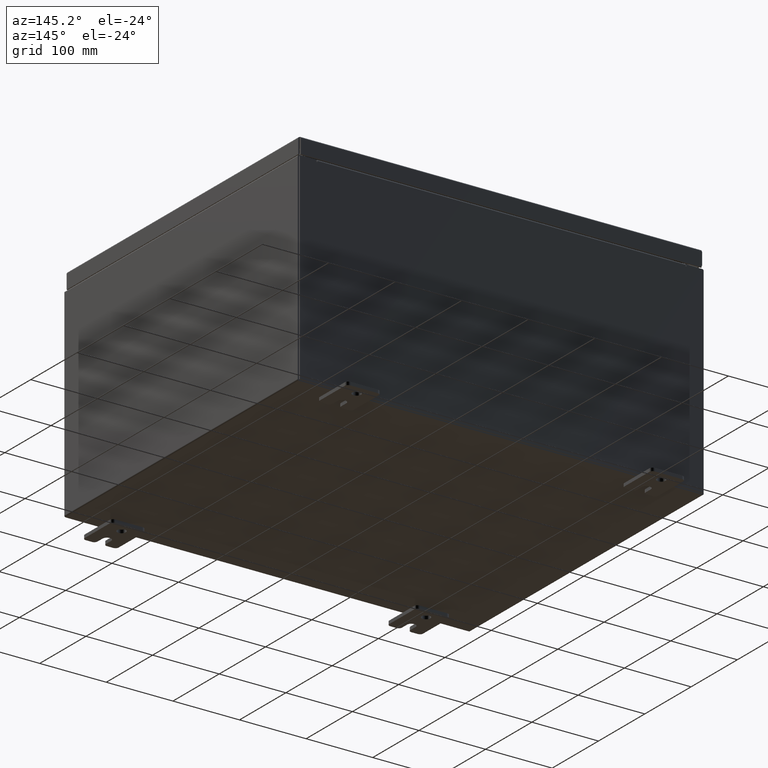
[diagram: clean part render]
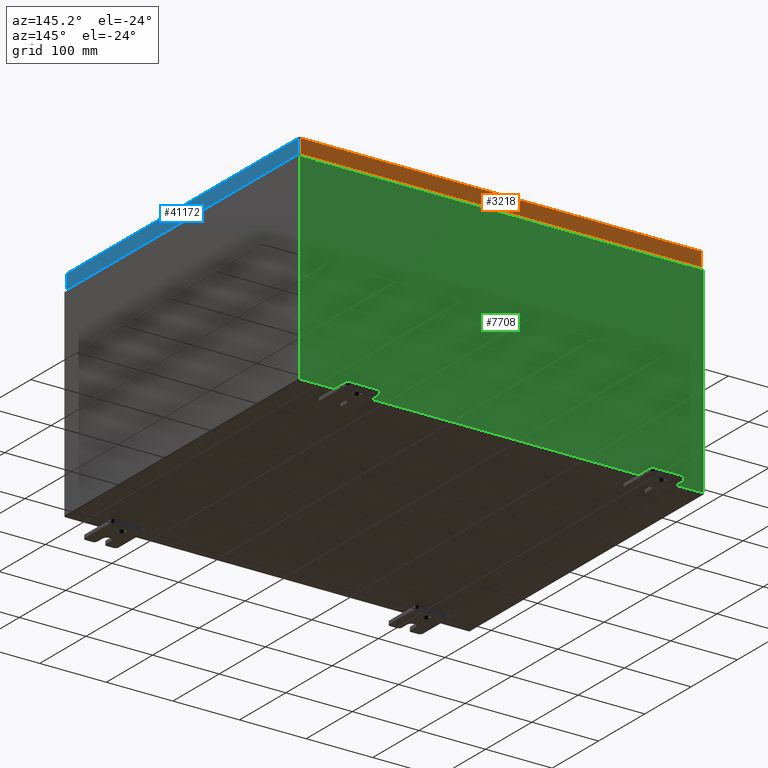
[diagram: same view with three faces highlighted in distinct colors, each labeled with its STEP entity id]
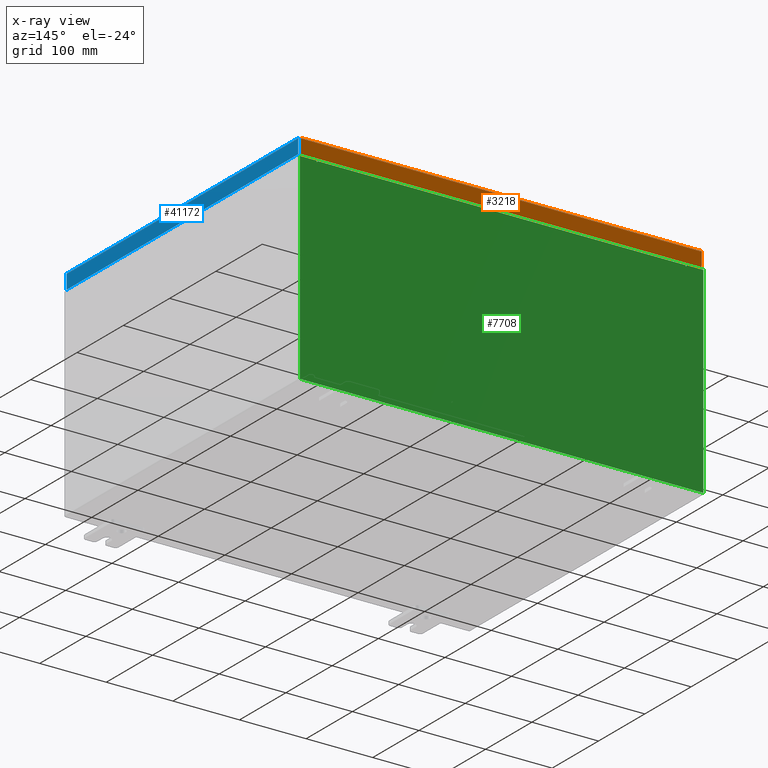
[diagram: x-ray of the same camera — body ghosted, the three highlighted faces saturated]
A machine part, auxiliary view with three faces highlighted in distinct colors.
The next image is the same camera in x-ray (body ghosted, the three faces saturated) — at least one of them is partly hidden behind the body in this view.
Their STEP definitions:

[orange] entity #3218 — the highlighted planar face has unit normal (0, -1, -0).
#571 = CARTESIAN_POINT ( 'NONE',  ( -11.93749999999999800, 9.937500000000000000, -0.08770000000000008300 ) ) ;
#898 = CARTESIAN_POINT ( 'NONE',  ( -11.84865786437626600, 9.937500000000001800, -0.9377000000000028600 ) ) ;
#2691 = EDGE_CURVE ( 'NONE', #61021, #38476, #24861, .T. ) ;
#3218 = ADVANCED_FACE ( 'NONE', ( #63209 ), #8394, .F. ) ;
#3462 = CARTESIAN_POINT ( 'NONE',  ( -3.167515136506044800E-030, 9.937500000000000000, 2.542673665674254000E-014 ) ) ;
#3505 = EDGE_CURVE ( 'NONE', #33344, #38476, #19436, .T. ) ;
#6437 = VECTOR ( 'NONE', #34890, 39.37007874015748100 ) ;
#7994 = VERTEX_POINT ( 'NONE', #59926 ) ;
#8394 = PLANE ( 'NONE',  #42826 ) ;
#9952 = ORIENTED_EDGE ( 'NONE', *, *, #12106, .F. ) ;
#10673 = DIRECTION ( 'NONE',  ( -0.0000000000000000000, 2.532419924601857400E-015, -1.000000000000000000 ) ) ;
#12106 = EDGE_CURVE ( 'NONE', #7994, #61021, #46683, .T. ) ;
#13302 = CARTESIAN_POINT ( 'NONE',  ( 11.84865786437626900, 9.937500000000001800, -0.9376999999999997600 ) ) ;
#13860 = VECTOR ( 'NONE', #59259, 39.37007874015748100 ) ;
#17070 = EDGE_CURVE ( 'NONE', #33344, #7994, #35336, .T. ) ;
#18236 = DIRECTION ( 'NONE',  ( 0.0000000000000000000, 2.532419924601857400E-015, -1.000000000000000000 ) ) ;
#19436 = LINE ( 'NONE', #44581, #6437 ) ;
#19742 = CARTESIAN_POINT ( 'NONE',  ( 11.84865786437626900, 9.937500000000000000, -0.08770000000000008300 ) ) ;
#20268 = ORIENTED_EDGE ( 'NONE', *, *, #17070, .F. ) ;
#24861 = LINE ( 'NONE', #43824, #37890 ) ;
#31638 = ORIENTED_EDGE ( 'NONE', *, *, #2691, .F. ) ;
#32555 = EDGE_LOOP ( 'NONE', ( #20268, #42505, #31638, #9952 ) ) ;
#33344 = VERTEX_POINT ( 'NONE', #19742 ) ;
#34890 = DIRECTION ( 'NONE',  ( 0.0000000000000000000, 2.532419924601857400E-015, -1.000000000000000000 ) ) ;
#35336 = LINE ( 'NONE', #571, #13860 ) ;
#37890 = VECTOR ( 'NONE', #58587, 39.37007874015748100 ) ;
#38476 = VERTEX_POINT ( 'NONE', #13302 ) ;
#42505 = ORIENTED_EDGE ( 'NONE', *, *, #3505, .T. ) ;
#42826 = AXIS2_PLACEMENT_3D ( 'NONE', #3462, #47602, #18236 ) ;
#43824 = CARTESIAN_POINT ( 'NONE',  ( -11.93749999999999800, 9.937500000000001800, -0.9377000000000028600 ) ) ;
#44029 = VECTOR ( 'NONE', #10673, 39.37007874015748100 ) ;
#44581 = CARTESIAN_POINT ( 'NONE',  ( 11.84865786437626900, 9.937500000000000000, 2.542673665674254000E-014 ) ) ;
#44983 = CARTESIAN_POINT ( 'NONE',  ( -11.84865786437626600, 9.937500000000000000, -0.07469999999999980800 ) ) ;
#46683 = LINE ( 'NONE', #44983, #44029 ) ;
#47602 = DIRECTION ( 'NONE',  ( 3.187436615351995300E-031, -1.000000000000000000, -2.532419924601857400E-015 ) ) ;
#58587 = DIRECTION ( 'NONE',  ( 1.000000000000000000, -4.379057701015054300E-047, 1.258652478756310100E-016 ) ) ;
#59259 = DIRECTION ( 'NONE',  ( -1.000000000000000000, -3.187436615351995700E-031, -7.980458346197337200E-046 ) ) ;
#59926 = CARTESIAN_POINT ( 'NONE',  ( -11.84865786437626600, 9.937500000000000000, -0.08770000000000008300 ) ) ;
#61021 = VERTEX_POINT ( 'NONE', #898 ) ;
#63209 = FACE_OUTER_BOUND ( 'NONE', #32555, .T. ) ;

[blue] entity #41172 — the highlighted planar face has unit normal (1, 0, 0).
#6292 = FACE_OUTER_BOUND ( 'NONE', #34145, .T. ) ;
#9268 = DIRECTION ( 'NONE',  ( 2.532419924601866100E-015, 0.0000000000000000000, -1.000000000000000000 ) ) ;
#10240 = EDGE_CURVE ( 'NONE', #28535, #20502, #46808, .T. ) ;
#10563 = DIRECTION ( 'NONE',  ( -2.532419924601866100E-015, -6.982962677686267500E-015, 1.000000000000000000 ) ) ;
#10772 = CARTESIAN_POINT ( 'NONE',  ( 11.93750000000000000, -9.848657864376269400, -0.07469999999999980800 ) ) ;
#12528 = DIRECTION ( 'NONE',  ( 0.0000000000000000000, -1.000000000000000000, 0.0000000000000000000 ) ) ;
#15539 = CARTESIAN_POINT ( 'NONE',  ( 11.93750000000000200, -9.937500000000000000, -0.9376999999999997600 ) ) ;
#15563 = EDGE_CURVE ( 'NONE', #20502, #60448, #53838, .T. ) ;
#17902 = VECTOR ( 'NONE', #23108, 39.37007874015748100 ) ;
#20502 = VERTEX_POINT ( 'NONE', #63185 ) ;
#23108 = DIRECTION ( 'NONE',  ( -2.532419924601866100E-015, -6.982962677686267500E-015, 1.000000000000000000 ) ) ;
#24575 = ORIENTED_EDGE ( 'NONE', *, *, #10240, .F. ) ;
#25606 = ORIENTED_EDGE ( 'NONE', *, *, #57177, .T. ) ;
#26236 = VECTOR ( 'NONE', #10563, 39.37007874015748100 ) ;
#28535 = VERTEX_POINT ( 'NONE', #53948 ) ;
#29339 = VERTEX_POINT ( 'NONE', #40980 ) ;
#33809 = EDGE_CURVE ( 'NONE', #28535, #29339, #56994, .T. ) ;
#34145 = EDGE_LOOP ( 'NONE', ( #60545, #24575, #37935, #25606 ) ) ;
#37935 = ORIENTED_EDGE ( 'NONE', *, *, #33809, .T. ) ;
#38604 = DIRECTION ( 'NONE',  ( 1.000000000000000000, 0.0000000000000000000, 2.532419924601866100E-015 ) ) ;
#40980 = CARTESIAN_POINT ( 'NONE',  ( 11.93750000000000000, 9.848657864376271200, -0.08770000000000008300 ) ) ;
#41172 = ADVANCED_FACE ( 'NONE', ( #6292 ), #63066, .T. ) ;
#46808 = LINE ( 'NONE', #15539, #58275 ) ;
#49523 = DIRECTION ( 'NONE',  ( 0.0000000000000000000, -1.000000000000000000, 0.0000000000000000000 ) ) ;
#50651 = AXIS2_PLACEMENT_3D ( 'NONE', #58127, #38604, #9268 ) ;
#51797 = CARTESIAN_POINT ( 'NONE',  ( 11.93750000000000000, 0.0000000000000000000, -0.08770000000000008300 ) ) ;
#53838 = LINE ( 'NONE', #10772, #26236 ) ;
#53948 = CARTESIAN_POINT ( 'NONE',  ( 11.93750000000000200, 9.848657864376274800, -0.9376999999999997600 ) ) ;
#55772 = CARTESIAN_POINT ( 'NONE',  ( 11.93750000000000000, -9.848657864376269400, -0.08770000000000008300 ) ) ;
#56994 = LINE ( 'NONE', #57419, #17902 ) ;
#57177 = EDGE_CURVE ( 'NONE', #29339, #60448, #59727, .T. ) ;
#57419 = CARTESIAN_POINT ( 'NONE',  ( 11.93750000000000000, 9.848657864376269400, 9.926438679818718800E-014 ) ) ;
#58127 = CARTESIAN_POINT ( 'NONE',  ( 11.93750000000000000, 0.0000000000000000000, 3.049157650594635900E-014 ) ) ;
#58178 = VECTOR ( 'NONE', #12528, 39.37007874015748100 ) ;
#58275 = VECTOR ( 'NONE', #49523, 39.37007874015748100 ) ;
#59727 = LINE ( 'NONE', #51797, #58178 ) ;
#60448 = VERTEX_POINT ( 'NONE', #55772 ) ;
#60545 = ORIENTED_EDGE ( 'NONE', *, *, #15563, .F. ) ;
#63066 = PLANE ( 'NONE',  #50651 ) ;
#63185 = CARTESIAN_POINT ( 'NONE',  ( 11.93750000000000200, -9.848657864376262300, -0.9376999999999997600 ) ) ;

[green] entity #7708 — the highlighted planar face has unit normal (0, -1, 0).
#75 = EDGE_CURVE ( 'NONE', #16858, #32611, #7413, .T. ) ;
#1116 = VERTEX_POINT ( 'NONE', #57245 ) ;
#1512 = VERTEX_POINT ( 'NONE', #58108 ) ;
#2681 = EDGE_CURVE ( 'NONE', #3758, #16858, #39437, .T. ) ;
#2815 = ORIENTED_EDGE ( 'NONE', *, *, #44519, .T. ) ;
#3758 = VERTEX_POINT ( 'NONE', #7043 ) ;
#4010 = CARTESIAN_POINT ( 'NONE',  ( -10.88720000000000000, -0.0000000000000000000, 5.874950000000001000 ) ) ;
#4244 = DIRECTION ( 'NONE',  ( 0.0000000000000000000, -0.0000000000000000000, -1.000000000000000000 ) ) ;
#4875 = CARTESIAN_POINT ( 'NONE',  ( -10.88720000000000200, -1.707404996040164500E-016, 5.912300000000001000 ) ) ;
#5405 = CARTESIAN_POINT ( 'NONE',  ( -11.92530000000000000, 0.0000000000000000000, 5.925300000000000000 ) ) ;
#5457 = VECTOR ( 'NONE', #16815, 39.37007874015748100 ) ;
#7043 = CARTESIAN_POINT ( 'NONE',  ( -10.88720000000000000, -1.707404996040164500E-016, 5.912300000000001000 ) ) ;
#7413 = CIRCLE ( 'NONE', #27495, 0.01867499999999949400 ) ;
#7708 = ADVANCED_FACE ( 'NONE', ( #31588 ), #28631, .F. ) ;
#8006 = VECTOR ( 'NONE', #60214, 39.37007874015748100 ) ;
#9593 = EDGE_CURVE ( 'NONE', #3758, #50210, #23015, .T. ) ;
#10022 = VECTOR ( 'NONE', #53908, 39.37007874015748100 ) ;
#12172 = ORIENTED_EDGE ( 'NONE', *, *, #42392, .F. ) ;
#16018 = ORIENTED_EDGE ( 'NONE', *, *, #17842, .F. ) ;
#16216 = CARTESIAN_POINT ( 'NONE',  ( 10.92455000000000000, 0.0000000000000000000, 5.925300000000001800 ) ) ;
#16640 = CARTESIAN_POINT ( 'NONE',  ( -11.92530000000000000, 0.0000000000000000000, -5.925299999999999100 ) ) ;
#16815 = DIRECTION ( 'NONE',  ( -0.0000000000000000000, -0.0000000000000000000, 1.000000000000000000 ) ) ;
#16858 = VERTEX_POINT ( 'NONE', #4010 ) ;
#16877 = LINE ( 'NONE', #63072, #41450 ) ;
#17497 = DIRECTION ( 'NONE',  ( 0.0000000000000000000, 0.0000000000000000000, 1.000000000000000000 ) ) ;
#17713 = LINE ( 'NONE', #22194, #55280 ) ;
#17842 = EDGE_CURVE ( 'NONE', #25172, #50210, #16877, .T. ) ;
#18205 = VECTOR ( 'NONE', #18292, 39.37007874015748100 ) ;
#18292 = DIRECTION ( 'NONE',  ( 0.0000000000000000000, 0.0000000000000000000, -1.000000000000000000 ) ) ;
#19534 = LINE ( 'NONE', #22371, #55584 ) ;
#19840 = VERTEX_POINT ( 'NONE', #40077 ) ;
#21110 = EDGE_CURVE ( 'NONE', #19840, #25172, #61214, .T. ) ;
#21519 = CARTESIAN_POINT ( 'NONE',  ( -11.92530000000000000, 0.0000000000000000000, -5.925299999999999100 ) ) ;
#21537 = DIRECTION ( 'NONE',  ( -0.0000000000000000000, 1.000000000000000000, -0.0000000000000000000 ) ) ;
#22194 = CARTESIAN_POINT ( 'NONE',  ( -10.92454999999999800, -0.0000000000000000000, 0.0000000000000000000 ) ) ;
#22371 = CARTESIAN_POINT ( 'NONE',  ( -11.92530000000000000, 0.0000000000000000000, 5.925300000000000000 ) ) ;
#22589 = CARTESIAN_POINT ( 'NONE',  ( -11.92530000000000000, 0.0000000000000000000, 5.925300000000000000 ) ) ;
#22929 = VECTOR ( 'NONE', #34708, 39.37007874015748100 ) ;
#23015 = LINE ( 'NONE', #4875, #10022 ) ;
#23185 = CARTESIAN_POINT ( 'NONE',  ( 11.92530000000000000, 0.0000000000000000000, 5.925300000000001800 ) ) ;
#24383 = DIRECTION ( 'NONE',  ( 0.0000000000000000000, 0.0000000000000000000, 1.000000000000000000 ) ) ;
#24481 = CARTESIAN_POINT ( 'NONE',  ( -10.92454999999999800, 0.0000000000000000000, 5.925300000000000000 ) ) ;
#24523 = EDGE_CURVE ( 'NONE', #52335, #33290, #19534, .T. ) ;
#24863 = AXIS2_PLACEMENT_3D ( 'NONE', #48139, #33537, #4244 ) ;
#25172 = VERTEX_POINT ( 'NONE', #60299 ) ;
#25608 = EDGE_CURVE ( 'NONE', #40924, #19840, #32505, .T. ) ;
#26399 = VECTOR ( 'NONE', #29008, 39.37007874015748100 ) ;
#26817 = AXIS2_PLACEMENT_3D ( 'NONE', #50957, #21537, #55840 ) ;
#27495 = AXIS2_PLACEMENT_3D ( 'NONE', #62232, #58128, #49539 ) ;
#28631 = PLANE ( 'NONE',  #24863 ) ;
#28907 = EDGE_CURVE ( 'NONE', #1116, #1512, #31256, .T. ) ;
#29008 = DIRECTION ( 'NONE',  ( 0.0000000000000000000, 0.0000000000000000000, -1.000000000000000000 ) ) ;
#31256 = LINE ( 'NONE', #23185, #18205 ) ;
#31411 = CARTESIAN_POINT ( 'NONE',  ( -11.92530000000000000, 0.0000000000000000000, 5.925300000000000000 ) ) ;
#31588 = FACE_OUTER_BOUND ( 'NONE', #53461, .T. ) ;
#32505 = LINE ( 'NONE', #50381, #8006 ) ;
#32611 = VERTEX_POINT ( 'NONE', #52935 ) ;
#33290 = VERTEX_POINT ( 'NONE', #24481 ) ;
#33537 = DIRECTION ( 'NONE',  ( 0.0000000000000000000, -1.000000000000000000, 0.0000000000000000000 ) ) ;
#34708 = DIRECTION ( 'NONE',  ( 1.000000000000000000, 0.0000000000000000000, 4.581600452255731000E-017 ) ) ;
#36111 = ORIENTED_EDGE ( 'NONE', *, *, #75, .F. ) ;
#36320 = DIRECTION ( 'NONE',  ( -1.000000000000000000, -0.0000000000000000000, -0.0000000000000000000 ) ) ;
#37166 = DIRECTION ( 'NONE',  ( 1.000000000000000000, 0.0000000000000000000, 4.581600452255731000E-017 ) ) ;
#37535 = EDGE_CURVE ( 'NONE', #1512, #41008, #48330, .T. ) ;
#38956 = ORIENTED_EDGE ( 'NONE', *, *, #28907, .T. ) ;
#39437 = LINE ( 'NONE', #58372, #26399 ) ;
#39936 = ORIENTED_EDGE ( 'NONE', *, *, #9593, .T. ) ;
#40077 = CARTESIAN_POINT ( 'NONE',  ( 10.92455000000000000, 0.0000000000000000000, 5.874950000000001000 ) ) ;
#40924 = VERTEX_POINT ( 'NONE', #16216 ) ;
#41008 = VERTEX_POINT ( 'NONE', #16640 ) ;
#41450 = VECTOR ( 'NONE', #24383, 39.37007874015748100 ) ;
#41451 = ORIENTED_EDGE ( 'NONE', *, *, #2681, .F. ) ;
#42326 = ORIENTED_EDGE ( 'NONE', *, *, #37535, .T. ) ;
#42392 = EDGE_CURVE ( 'NONE', #32611, #33290, #17713, .T. ) ;
#44519 = EDGE_CURVE ( 'NONE', #41008, #52335, #57570, .T. ) ;
#46324 = EDGE_CURVE ( 'NONE', #40924, #1116, #62101, .T. ) ;
#48139 = CARTESIAN_POINT ( 'NONE',  ( 0.0000000000000000000, 0.0000000000000000000, 0.0000000000000000000 ) ) ;
#48330 = LINE ( 'NONE', #21519, #58305 ) ;
#49539 = DIRECTION ( 'NONE',  ( 0.0000000000000000000, 0.0000000000000000000, -1.000000000000000000 ) ) ;
#50210 = VERTEX_POINT ( 'NONE', #59216 ) ;
#50381 = CARTESIAN_POINT ( 'NONE',  ( 10.92455000000000000, 0.0000000000000000000, 0.0000000000000000000 ) ) ;
#50957 = CARTESIAN_POINT ( 'NONE',  ( 10.90587500000000200, 0.0000000000000000000, 5.874950000000001000 ) ) ;
#52131 = ORIENTED_EDGE ( 'NONE', *, *, #24523, .T. ) ;
#52335 = VERTEX_POINT ( 'NONE', #22589 ) ;
#52935 = CARTESIAN_POINT ( 'NONE',  ( -10.92454999999999800, 0.0000000000000000000, 5.874950000000001000 ) ) ;
#53461 = EDGE_LOOP ( 'NONE', ( #12172, #36111, #41451, #39936, #16018, #58040, #54128, #55618, #38956, #42326, #2815, #52131 ) ) ;
#53908 = DIRECTION ( 'NONE',  ( 1.000000000000000000, 0.0000000000000000000, 0.0000000000000000000 ) ) ;
#54128 = ORIENTED_EDGE ( 'NONE', *, *, #25608, .F. ) ;
#55280 = VECTOR ( 'NONE', #17497, 39.37007874015748100 ) ;
#55584 = VECTOR ( 'NONE', #37166, 39.37007874015748100 ) ;
#55618 = ORIENTED_EDGE ( 'NONE', *, *, #46324, .T. ) ;
#55840 = DIRECTION ( 'NONE',  ( 0.0000000000000000000, 0.0000000000000000000, -1.000000000000000000 ) ) ;
#57245 = CARTESIAN_POINT ( 'NONE',  ( 11.92530000000000000, 0.0000000000000000000, 5.925300000000001800 ) ) ;
#57570 = LINE ( 'NONE', #31411, #5457 ) ;
#58040 = ORIENTED_EDGE ( 'NONE', *, *, #21110, .F. ) ;
#58108 = CARTESIAN_POINT ( 'NONE',  ( 11.92530000000000000, 0.0000000000000000000, -5.925299999999999100 ) ) ;
#58128 = DIRECTION ( 'NONE',  ( -0.0000000000000000000, 1.000000000000000000, -0.0000000000000000000 ) ) ;
#58305 = VECTOR ( 'NONE', #36320, 39.37007874015748100 ) ;
#58372 = CARTESIAN_POINT ( 'NONE',  ( -10.88720000000000000, -0.0000000000000000000, 0.0000000000000000000 ) ) ;
#59216 = CARTESIAN_POINT ( 'NONE',  ( 10.88720000000000200, 0.0000000000000000000, 5.912300000000001000 ) ) ;
#60214 = DIRECTION ( 'NONE',  ( 0.0000000000000000000, 0.0000000000000000000, -1.000000000000000000 ) ) ;
#60299 = CARTESIAN_POINT ( 'NONE',  ( 10.88720000000000200, 0.0000000000000000000, 5.874950000000001000 ) ) ;
#61214 = CIRCLE ( 'NONE', #26817, 0.01867499999999949400 ) ;
#62101 = LINE ( 'NONE', #5405, #22929 ) ;
#62232 = CARTESIAN_POINT ( 'NONE',  ( -10.90587500000000000, 0.0000000000000000000, 5.874950000000001000 ) ) ;
#63072 = CARTESIAN_POINT ( 'NONE',  ( 10.88720000000000200, 0.0000000000000000000, 0.0000000000000000000 ) ) ;